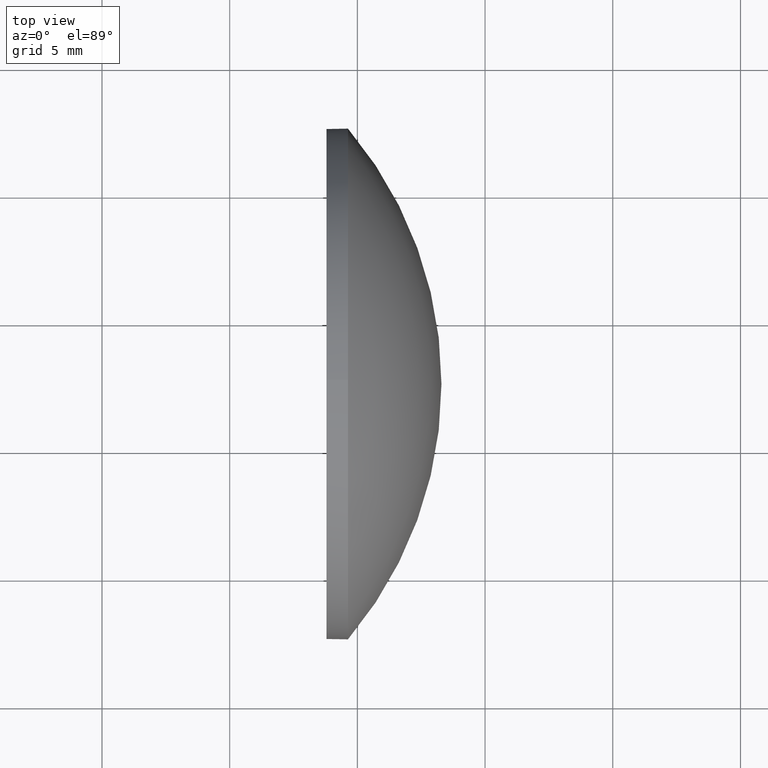
[diagram: clean part render]
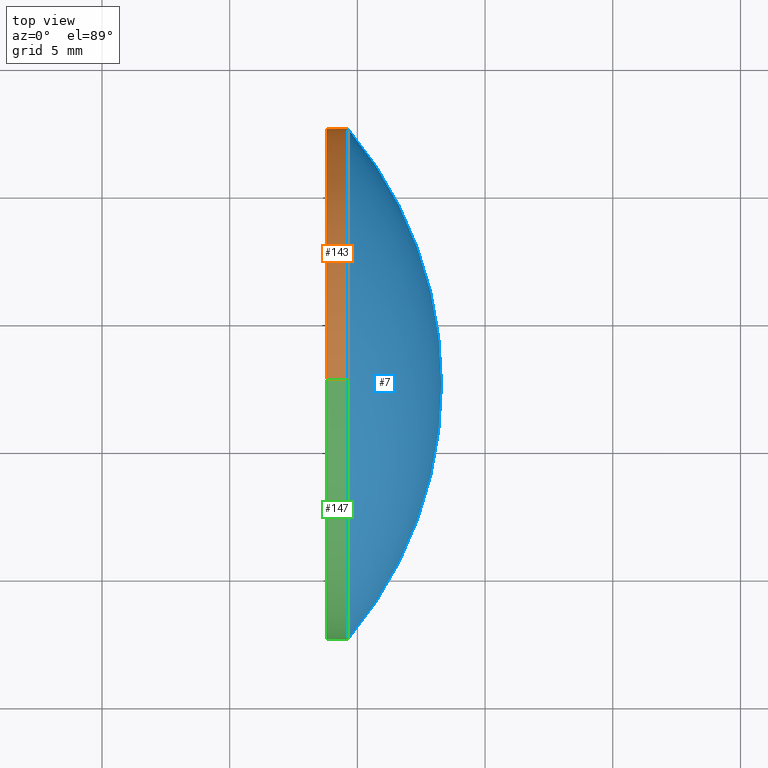
[diagram: same view with three faces highlighted in distinct colors, each labeled with its STEP entity id]
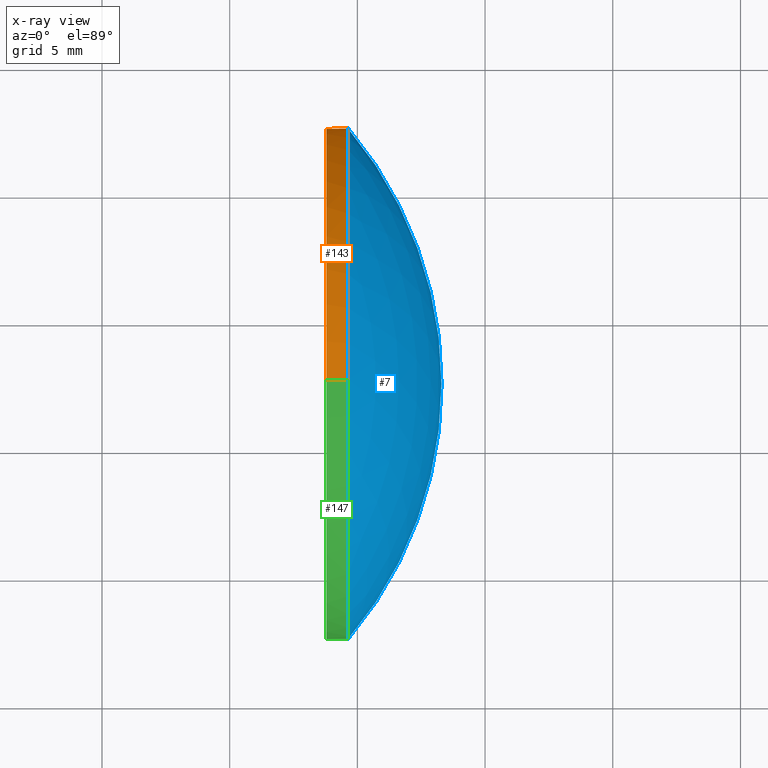
[diagram: x-ray of the same camera — body ghosted, the three highlighted faces saturated]
A machine part, top view with three faces highlighted in distinct colors.
The next image is the same camera in x-ray (body ghosted, the three faces saturated) — at least one of them is partly hidden behind the body in this view.
Their STEP definitions:

[orange] entity #143 — the highlighted cylindrical surface (partial cylindrical patch) has radius 10 mm, axis along (-1, -0, -0).
#1 = EDGE_CURVE ( 'NONE', #84, #19, #34, .T. ) ;
#10 = EDGE_CURVE ( 'NONE', #139, #99, #42, .T. ) ;
#19 = VERTEX_POINT ( 'NONE', #146 ) ;
#24 = DIRECTION ( 'NONE',  ( -1.000000000000000000, -0.0000000000000000000, -0.0000000000000000000 ) ) ;
#25 = AXIS2_PLACEMENT_3D ( 'NONE', #161, #158, #102 ) ;
#33 = LINE ( 'NONE', #108, #97 ) ;
#34 = CIRCLE ( 'NONE', #25, 9.999999999999994700 ) ;
#37 = EDGE_CURVE ( 'NONE', #142, #84, #157, .T. ) ;
#42 = CIRCLE ( 'NONE', #52, 9.999999999999994700 ) ;
#43 = ORIENTED_EDGE ( 'NONE', *, *, #173, .T. ) ;
#45 = EDGE_CURVE ( 'NONE', #142, #139, #123, .T. ) ;
#47 = AXIS2_PLACEMENT_3D ( 'NONE', #48, #71, #179 ) ;
#48 = CARTESIAN_POINT ( 'NONE',  ( 434.6316024094511500, 97.54092323461679800, 0.0000000000000000000 ) ) ;
#52 = AXIS2_PLACEMENT_3D ( 'NONE', #62, #85, #129 ) ;
#55 = CARTESIAN_POINT ( 'NONE',  ( 433.7916024094511200, 97.54092323461679800, -9.999999999999994700 ) ) ;
#56 = ORIENTED_EDGE ( 'NONE', *, *, #10, .F. ) ;
#59 = VECTOR ( 'NONE', #101, 1000.000000000000000 ) ;
#60 = ORIENTED_EDGE ( 'NONE', *, *, #37, .T. ) ;
#62 = CARTESIAN_POINT ( 'NONE',  ( 433.7916024094511200, 97.54092323461679800, 0.0000000000000000000 ) ) ;
#71 = DIRECTION ( 'NONE',  ( -1.000000000000000000, -0.0000000000000000000, -0.0000000000000000000 ) ) ;
#84 = VERTEX_POINT ( 'NONE', #148 ) ;
#85 = DIRECTION ( 'NONE',  ( -1.000000000000000000, -0.0000000000000000000, -0.0000000000000000000 ) ) ;
#91 = DIRECTION ( 'NONE',  ( -1.000000000000000000, -0.0000000000000000000, -0.0000000000000000000 ) ) ;
#93 = CYLINDRICAL_SURFACE ( 'NONE', #128, 9.999999999999994700 ) ;
#97 = VECTOR ( 'NONE', #91, 1000.000000000000000 ) ;
#99 = VERTEX_POINT ( 'NONE', #55 ) ;
#101 = DIRECTION ( 'NONE',  ( -1.000000000000000000, -0.0000000000000000000, -0.0000000000000000000 ) ) ;
#102 = DIRECTION ( 'NONE',  ( 0.0000000000000000000, 0.0000000000000000000, 1.000000000000000000 ) ) ;
#105 = DIRECTION ( 'NONE',  ( 0.0000000000000000000, 0.0000000000000000000, 1.000000000000000000 ) ) ;
#108 = CARTESIAN_POINT ( 'NONE',  ( 431.3880815283939700, 97.54092323461679800, -9.999999999999994700 ) ) ;
#112 = ORIENTED_EDGE ( 'NONE', *, *, #45, .F. ) ;
#120 = CARTESIAN_POINT ( 'NONE',  ( 433.7916024094511200, 97.54092323461679800, 9.999999999999994700 ) ) ;
#123 = LINE ( 'NONE', #156, #59 ) ;
#128 = AXIS2_PLACEMENT_3D ( 'NONE', #168, #24, #105 ) ;
#129 = DIRECTION ( 'NONE',  ( 0.0000000000000000000, 0.0000000000000000000, 1.000000000000000000 ) ) ;
#139 = VERTEX_POINT ( 'NONE', #120 ) ;
#142 = VERTEX_POINT ( 'NONE', #151 ) ;
#143 = ADVANCED_FACE ( 'NONE', ( #155 ), #93, .T. ) ;
#146 = CARTESIAN_POINT ( 'NONE',  ( 434.6316024094511500, 97.54092323461679800, -9.999999999999994700 ) ) ;
#148 = CARTESIAN_POINT ( 'NONE',  ( 434.6316024094511500, 107.5409232346168000, 0.0000000000000000000 ) ) ;
#149 = ORIENTED_EDGE ( 'NONE', *, *, #1, .T. ) ;
#151 = CARTESIAN_POINT ( 'NONE',  ( 434.6316024094511500, 97.54092323461679800, 9.999999999999994700 ) ) ;
#152 = EDGE_LOOP ( 'NONE', ( #149, #43, #56, #112, #60 ) ) ;
#155 = FACE_OUTER_BOUND ( 'NONE', #152, .T. ) ;
#156 = CARTESIAN_POINT ( 'NONE',  ( 431.3880815283939700, 97.54092323461679800, 9.999999999999994700 ) ) ;
#157 = CIRCLE ( 'NONE', #47, 9.999999999999994700 ) ;
#158 = DIRECTION ( 'NONE',  ( -1.000000000000000000, -0.0000000000000000000, -0.0000000000000000000 ) ) ;
#161 = CARTESIAN_POINT ( 'NONE',  ( 434.6316024094511500, 97.54092323461679800, 0.0000000000000000000 ) ) ;
#168 = CARTESIAN_POINT ( 'NONE',  ( 431.3880815283939700, 97.54092323461679800, 0.0000000000000000000 ) ) ;
#173 = EDGE_CURVE ( 'NONE', #19, #99, #33, .T. ) ;
#179 = DIRECTION ( 'NONE',  ( 0.0000000000000000000, 0.0000000000000000000, 1.000000000000000000 ) ) ;

[blue] entity #7 — the highlighted spherical surface has radius 15.4881 mm.
#4 = ORIENTED_EDGE ( 'NONE', *, *, #106, .F. ) ;
#7 = ADVANCED_FACE ( 'NONE', ( #86 ), #68, .T. ) ;
#9 = EDGE_LOOP ( 'NONE', ( #4, #163, #78, #118 ) ) ;
#12 = DIRECTION ( 'NONE',  ( 0.0000000000000000000, 1.224646799147353200E-016, -1.000000000000000000 ) ) ;
#17 = EDGE_CURVE ( 'NONE', #81, #142, #96, .T. ) ;
#21 = CARTESIAN_POINT ( 'NONE',  ( 434.6316024094511500, 97.54092323461679800, 0.0000000000000000000 ) ) ;
#32 = AXIS2_PLACEMENT_3D ( 'NONE', #145, #178, #134 ) ;
#37 = EDGE_CURVE ( 'NONE', #142, #84, #157, .T. ) ;
#38 = AXIS2_PLACEMENT_3D ( 'NONE', #185, #12, #64 ) ;
#47 = AXIS2_PLACEMENT_3D ( 'NONE', #48, #71, #179 ) ;
#48 = CARTESIAN_POINT ( 'NONE',  ( 434.6316024094511500, 97.54092323461679800, 0.0000000000000000000 ) ) ;
#49 = CARTESIAN_POINT ( 'NONE',  ( 434.6316024094511500, 87.54092323461678400, -1.224646799147352500E-015 ) ) ;
#63 = CARTESIAN_POINT ( 'NONE',  ( 422.8044958310844700, 97.54092323461678400, 0.0000000000000000000 ) ) ;
#64 = DIRECTION ( 'NONE',  ( 0.0000000000000000000, 1.000000000000000000, 1.224646799147353200E-016 ) ) ;
#66 = CIRCLE ( 'NONE', #69, 15.48807444507044400 ) ;
#68 = SPHERICAL_SURFACE ( 'NONE', #32, 15.48807444507044400 ) ;
#69 = AXIS2_PLACEMENT_3D ( 'NONE', #63, #75, #184 ) ;
#70 = CIRCLE ( 'NONE', #38, 15.48807444507044400 ) ;
#71 = DIRECTION ( 'NONE',  ( -1.000000000000000000, -0.0000000000000000000, -0.0000000000000000000 ) ) ;
#75 = DIRECTION ( 'NONE',  ( -0.0000000000000000000, 0.0000000000000000000, 1.000000000000000000 ) ) ;
#78 = ORIENTED_EDGE ( 'NONE', *, *, #37, .F. ) ;
#81 = VERTEX_POINT ( 'NONE', #49 ) ;
#84 = VERTEX_POINT ( 'NONE', #148 ) ;
#86 = FACE_OUTER_BOUND ( 'NONE', #9, .T. ) ;
#90 = CARTESIAN_POINT ( 'NONE',  ( 438.2925702761549500, 97.54092323461678400, 0.0000000000000000000 ) ) ;
#96 = CIRCLE ( 'NONE', #150, 9.999999999999994700 ) ;
#106 = EDGE_CURVE ( 'NONE', #131, #81, #70, .T. ) ;
#118 = ORIENTED_EDGE ( 'NONE', *, *, #17, .F. ) ;
#127 = EDGE_CURVE ( 'NONE', #131, #84, #66, .T. ) ;
#131 = VERTEX_POINT ( 'NONE', #90 ) ;
#133 = DIRECTION ( 'NONE',  ( -1.000000000000000000, -0.0000000000000000000, -0.0000000000000000000 ) ) ;
#134 = DIRECTION ( 'NONE',  ( 0.0000000000000000000, 1.000000000000000000, 0.0000000000000000000 ) ) ;
#142 = VERTEX_POINT ( 'NONE', #151 ) ;
#145 = CARTESIAN_POINT ( 'NONE',  ( 422.8044958310844700, 97.54092323461678400, 0.0000000000000000000 ) ) ;
#148 = CARTESIAN_POINT ( 'NONE',  ( 434.6316024094511500, 107.5409232346168000, 0.0000000000000000000 ) ) ;
#150 = AXIS2_PLACEMENT_3D ( 'NONE', #21, #133, #176 ) ;
#151 = CARTESIAN_POINT ( 'NONE',  ( 434.6316024094511500, 97.54092323461679800, 9.999999999999994700 ) ) ;
#157 = CIRCLE ( 'NONE', #47, 9.999999999999994700 ) ;
#163 = ORIENTED_EDGE ( 'NONE', *, *, #127, .T. ) ;
#176 = DIRECTION ( 'NONE',  ( 0.0000000000000000000, 0.0000000000000000000, 1.000000000000000000 ) ) ;
#178 = DIRECTION ( 'NONE',  ( -0.0000000000000000000, 0.0000000000000000000, -1.000000000000000000 ) ) ;
#179 = DIRECTION ( 'NONE',  ( 0.0000000000000000000, 0.0000000000000000000, 1.000000000000000000 ) ) ;
#184 = DIRECTION ( 'NONE',  ( 1.000000000000000000, 0.0000000000000000000, 0.0000000000000000000 ) ) ;
#185 = CARTESIAN_POINT ( 'NONE',  ( 422.8044958310844700, 97.54092323461678400, 0.0000000000000000000 ) ) ;

[green] entity #147 — the highlighted cylindrical surface (partial cylindrical patch) has radius 10 mm, axis along (-1, -0, -0).
#2 = AXIS2_PLACEMENT_3D ( 'NONE', #182, #22, #117 ) ;
#6 = CIRCLE ( 'NONE', #2, 9.999999999999994700 ) ;
#17 = EDGE_CURVE ( 'NONE', #81, #142, #96, .T. ) ;
#18 = ORIENTED_EDGE ( 'NONE', *, *, #82, .T. ) ;
#19 = VERTEX_POINT ( 'NONE', #146 ) ;
#20 = ORIENTED_EDGE ( 'NONE', *, *, #45, .T. ) ;
#21 = CARTESIAN_POINT ( 'NONE',  ( 434.6316024094511500, 97.54092323461679800, 0.0000000000000000000 ) ) ;
#22 = DIRECTION ( 'NONE',  ( -1.000000000000000000, -0.0000000000000000000, -0.0000000000000000000 ) ) ;
#27 = DIRECTION ( 'NONE',  ( -1.000000000000000000, -0.0000000000000000000, -0.0000000000000000000 ) ) ;
#28 = CARTESIAN_POINT ( 'NONE',  ( 433.7916024094511200, 97.54092323461679800, 0.0000000000000000000 ) ) ;
#33 = LINE ( 'NONE', #108, #97 ) ;
#39 = DIRECTION ( 'NONE',  ( 0.0000000000000000000, 0.0000000000000000000, 1.000000000000000000 ) ) ;
#45 = EDGE_CURVE ( 'NONE', #142, #139, #123, .T. ) ;
#46 = AXIS2_PLACEMENT_3D ( 'NONE', #79, #27, #65 ) ;
#49 = CARTESIAN_POINT ( 'NONE',  ( 434.6316024094511500, 87.54092323461678400, -1.224646799147352500E-015 ) ) ;
#51 = EDGE_LOOP ( 'NONE', ( #126, #18, #169, #20, #57 ) ) ;
#55 = CARTESIAN_POINT ( 'NONE',  ( 433.7916024094511200, 97.54092323461679800, -9.999999999999994700 ) ) ;
#57 = ORIENTED_EDGE ( 'NONE', *, *, #113, .F. ) ;
#59 = VECTOR ( 'NONE', #101, 1000.000000000000000 ) ;
#65 = DIRECTION ( 'NONE',  ( 0.0000000000000000000, 0.0000000000000000000, 1.000000000000000000 ) ) ;
#79 = CARTESIAN_POINT ( 'NONE',  ( 431.3880815283939700, 97.54092323461679800, 0.0000000000000000000 ) ) ;
#81 = VERTEX_POINT ( 'NONE', #49 ) ;
#82 = EDGE_CURVE ( 'NONE', #19, #81, #6, .T. ) ;
#83 = AXIS2_PLACEMENT_3D ( 'NONE', #28, #183, #39 ) ;
#91 = DIRECTION ( 'NONE',  ( -1.000000000000000000, -0.0000000000000000000, -0.0000000000000000000 ) ) ;
#96 = CIRCLE ( 'NONE', #150, 9.999999999999994700 ) ;
#97 = VECTOR ( 'NONE', #91, 1000.000000000000000 ) ;
#99 = VERTEX_POINT ( 'NONE', #55 ) ;
#101 = DIRECTION ( 'NONE',  ( -1.000000000000000000, -0.0000000000000000000, -0.0000000000000000000 ) ) ;
#108 = CARTESIAN_POINT ( 'NONE',  ( 431.3880815283939700, 97.54092323461679800, -9.999999999999994700 ) ) ;
#113 = EDGE_CURVE ( 'NONE', #99, #139, #181, .T. ) ;
#117 = DIRECTION ( 'NONE',  ( 0.0000000000000000000, 0.0000000000000000000, 1.000000000000000000 ) ) ;
#120 = CARTESIAN_POINT ( 'NONE',  ( 433.7916024094511200, 97.54092323461679800, 9.999999999999994700 ) ) ;
#123 = LINE ( 'NONE', #156, #59 ) ;
#126 = ORIENTED_EDGE ( 'NONE', *, *, #173, .F. ) ;
#133 = DIRECTION ( 'NONE',  ( -1.000000000000000000, -0.0000000000000000000, -0.0000000000000000000 ) ) ;
#139 = VERTEX_POINT ( 'NONE', #120 ) ;
#141 = CYLINDRICAL_SURFACE ( 'NONE', #46, 9.999999999999994700 ) ;
#142 = VERTEX_POINT ( 'NONE', #151 ) ;
#144 = FACE_OUTER_BOUND ( 'NONE', #51, .T. ) ;
#146 = CARTESIAN_POINT ( 'NONE',  ( 434.6316024094511500, 97.54092323461679800, -9.999999999999994700 ) ) ;
#147 = ADVANCED_FACE ( 'NONE', ( #144 ), #141, .T. ) ;
#150 = AXIS2_PLACEMENT_3D ( 'NONE', #21, #133, #176 ) ;
#151 = CARTESIAN_POINT ( 'NONE',  ( 434.6316024094511500, 97.54092323461679800, 9.999999999999994700 ) ) ;
#156 = CARTESIAN_POINT ( 'NONE',  ( 431.3880815283939700, 97.54092323461679800, 9.999999999999994700 ) ) ;
#169 = ORIENTED_EDGE ( 'NONE', *, *, #17, .T. ) ;
#173 = EDGE_CURVE ( 'NONE', #19, #99, #33, .T. ) ;
#176 = DIRECTION ( 'NONE',  ( 0.0000000000000000000, 0.0000000000000000000, 1.000000000000000000 ) ) ;
#181 = CIRCLE ( 'NONE', #83, 9.999999999999994700 ) ;
#182 = CARTESIAN_POINT ( 'NONE',  ( 434.6316024094511500, 97.54092323461679800, 0.0000000000000000000 ) ) ;
#183 = DIRECTION ( 'NONE',  ( -1.000000000000000000, -0.0000000000000000000, -0.0000000000000000000 ) ) ;